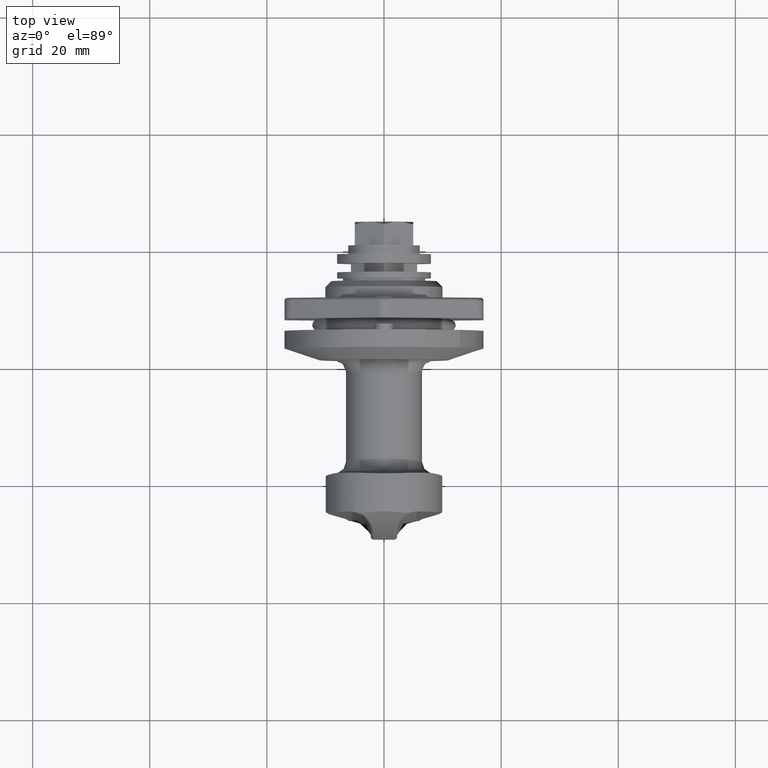
[diagram: clean part render]
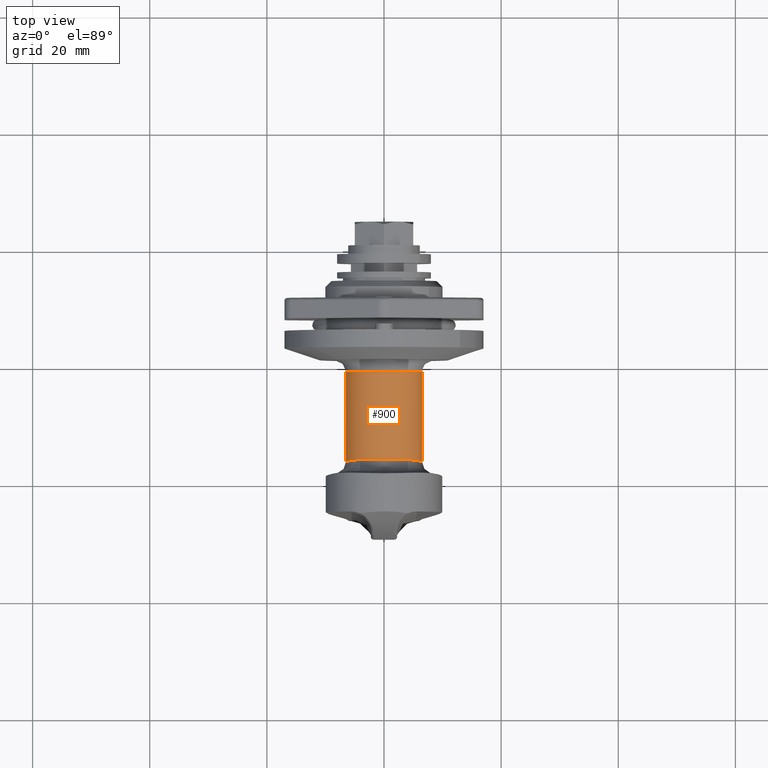
[diagram: same view with one face highlighted and labeled with its STEP entity id]
A machine part, top view. The second image highlights one B-rep face of the part: STEP entity #900.
In plain terms, the highlighted face is a freeform B-spline surface patch.
Its self-contained STEP definition (entity closure, byte-faithful):
#677=CARTESIAN_POINT('',(-1.616274981056393,-4.840327707059196,-4.338343887738159));
#678=CARTESIAN_POINT('',(-1.616274981056393,-8.703586934423322,-0.028072235319236));
#679=CARTESIAN_POINT('',(-1.616274981056393,-4.868212185128506,4.307030313402298));
#680=CARTESIAN_POINT('',(-1.616274981056393,-0.561181871726208,9.175242498530803));
#681=CARTESIAN_POINT('',(-1.616274981056393,4.307030313402298,4.868212185128506));
#682=CARTESIAN_POINT('',(-1.616274981056393,9.175242498530803,0.561181871726208));
#683=CARTESIAN_POINT('',(-1.616274981056393,4.868212185128506,-4.307030313402298));
#684=CARTESIAN_POINT('',(-17.742318895690953,-4.840327707059196,-4.338343887738159));
#685=CARTESIAN_POINT('',(-17.742318895690946,-8.703586934423322,-0.028072235319236));
#686=CARTESIAN_POINT('',(-17.742318895690950,-4.868212185128506,4.307030313402298));
#687=CARTESIAN_POINT('',(-17.742318895690950,-0.561181871726208,9.175242498530803));
#688=CARTESIAN_POINT('',(-17.742318895690950,4.307030313402298,4.868212185128506));
#689=CARTESIAN_POINT('',(-17.742318895690950,9.175242498530803,0.561181871726208));
#690=CARTESIAN_POINT('',(-17.742318895690950,4.868212185128506,-4.307030313402298));
#698=(BOUNDED_SURFACE()B_SPLINE_SURFACE(2,1,((#677,#684),(#678,#685),(#679,#686),(#680,#687),(#681,#688),(#682,#689),(#683,#690)),.UNSPECIFIED.,.F.,.F.,.U.)B_SPLINE_SURFACE_WITH_KNOTS((3,2,2,3),(2,2),(0.0,9.907988411964428,20.677541033664902,31.447093655365361),(0.0,16.126043914634561),.UNSPECIFIED.)GEOMETRIC_REPRESENTATION_ITEM()RATIONAL_B_SPLINE_SURFACE(((0.956886118190660,0.956886118190660),(0.730538238691624,0.730538238691624),(1.0,1.0),(0.707106781186548,0.707106781186548),(1.0,1.0),(0.707106781186548,0.707106781186548),(1.0,1.0)))REPRESENTATION_ITEM('')SURFACE());
#699=CARTESIAN_POINT('',(-1.999999999760314,-4.840327776684969,-4.338343810051352));
#700=VERTEX_POINT('',#699);
#701=CARTESIAN_POINT('',(-1.999999999846031,-6.499486787324419,-0.081679259272418));
#702=VERTEX_POINT('',#701);
#703=CARTESIAN_POINT('',(-1.999999999760314,-4.840327776684969,-4.338343810051352));
#704=CARTESIAN_POINT('',(-1.999999999766972,-5.132482228402646,-4.012479068144118));
#705=CARTESIAN_POINT('',(-1.999999999779407,-5.578572088630138,-3.400160532394726));
#706=CARTESIAN_POINT('',(-1.999999999801515,-6.115209284840559,-2.305695101260805));
#707=CARTESIAN_POINT('',(-1.999999999823240,-6.422022340528731,-1.223555322920385));
#708=CARTESIAN_POINT('',(-1.999999999839246,-6.495217584714386,-0.422044723707858));
#709=CARTESIAN_POINT('',(-1.999999999846031,-6.499486787324419,-0.081679259272418));
#710=B_SPLINE_CURVE_WITH_KNOTS('',3,(#703,#704,#705,#706,#707,#708,#709),.UNSPECIFIED.,.F.,.U.,(4,1,1,1,4),(0.000000025730283,1.312960298647720,2.261225010924401,3.647109397288970,4.668298223012871),.UNSPECIFIED.);
#711=EDGE_CURVE('',#700,#702,#710,.T.);
#712=ORIENTED_EDGE('',*,*,#711,.T.);
#713=CARTESIAN_POINT('',(-2.0,0.0,6.500000000000000));
#714=VERTEX_POINT('',#713);
#715=CARTESIAN_POINT('',(-1.999999999846031,-6.499486787324419,-0.081679259272418));
#716=CARTESIAN_POINT('',(-1.999999999874165,-6.508689298409492,0.615174182227495));
#717=CARTESIAN_POINT('',(-1.999999999911518,-6.359638524340374,1.608495790666038));
#718=CARTESIAN_POINT('',(-1.999999999956605,-5.825431151419839,2.957249431970629));
#719=CARTESIAN_POINT('',(-1.999999999985292,-5.233561498160982,3.922064346430827));
#720=CARTESIAN_POINT('',(-2.000000000005784,-4.469960158154708,4.754871211182258));
#721=CARTESIAN_POINT('',(-2.000000000020372,-3.504650423652887,5.526420982039717));
#722=CARTESIAN_POINT('',(-2.000000000024423,-2.423734443426501,6.083979346118330));
#723=CARTESIAN_POINT('',(-2.000000000016751,-1.152446629896496,6.430135522730859));
#724=CARTESIAN_POINT('',(-2.000000000006819,-0.402026015480293,6.500044500931248));
#725=CARTESIAN_POINT('',(-2.0,0.0,6.500000000000000));
#726=B_SPLINE_CURVE_WITH_KNOTS('',3,(#715,#716,#717,#718,#719,#720,#721,#722,#723,#724,#725),.UNSPECIFIED.,.F.,.U.,(4,1,1,1,1,1,1,1,4),(0.000000118591649,2.090538353731860,2.975017048603450,4.341934387525281,5.467574386405851,6.352036381901879,8.040568141185878,9.085848398116941,10.291923147540560),.UNSPECIFIED.);
#727=EDGE_CURVE('',#702,#714,#726,.T.);
#728=ORIENTED_EDGE('',*,*,#727,.T.);
#729=CARTESIAN_POINT('',(-1.999999999846566,6.484176879960897,0.453266135267743));
#730=VERTEX_POINT('',#729);
#731=CARTESIAN_POINT('',(-2.0,0.0,6.500000000000000));
#732=CARTESIAN_POINT('',(-2.000000000000008,0.609819882735849,6.500262209155975));
#733=CARTESIAN_POINT('',(-1.999999999996892,1.473527438797466,6.377497811827604));
#734=CARTESIAN_POINT('',(-1.999999999986119,2.673239870180006,5.952997546068328));
#735=CARTESIAN_POINT('',(-1.999999999974793,3.505234280950881,5.506528870271798));
#736=CARTESIAN_POINT('',(-1.999999999957564,4.396505572483300,4.827821340840782));
#737=CARTESIAN_POINT('',(-1.999999999938231,5.114531432225818,4.065992329891944));
#738=CARTESIAN_POINT('',(-1.999999999913921,5.742822976860496,3.106757413481844));
#739=CARTESIAN_POINT('',(-1.999999999884283,6.257890519832114,1.940079302044706));
#740=CARTESIAN_POINT('',(-1.999999999860719,6.445374354464187,1.010900152196989));
#741=CARTESIAN_POINT('',(-1.999999999846566,6.484176879960897,0.453266135267743));
#742=B_SPLINE_CURVE_WITH_KNOTS('',3,(#731,#732,#733,#734,#735,#736,#737,#738,#739,#740,#741),.UNSPECIFIED.,.F.,.U.,(4,1,1,1,1,1,1,1,4),(0.000000099334555,1.829356158111457,2.591598634307149,3.811198624384895,4.649638923553277,5.945401887005637,6.936328949858787,8.079697559701675,9.756597730657925),.UNSPECIFIED.);
#743=EDGE_CURVE('',#714,#730,#742,.T.);
#744=ORIENTED_EDGE('',*,*,#743,.T.);
#745=CARTESIAN_POINT('',(-1.999999999997245,4.868212128827642,-4.307030377038849));
#746=VERTEX_POINT('',#745);
#747=CARTESIAN_POINT('',(-1.999999999846566,6.484176879960897,0.453266135267743));
#748=CARTESIAN_POINT('',(-1.999999999873341,6.533324518282768,-0.244045501946018));
#749=CARTESIAN_POINT('',(-1.999999999913033,6.430601271488023,-1.355839440578255));
#750=CARTESIAN_POINT('',(-1.999999999963960,5.844709395859695,-2.981551758815127));
#751=CARTESIAN_POINT('',(-1.999999999986737,5.278134467335256,-3.844074699284245));
#752=CARTESIAN_POINT('',(-1.999999999997245,4.868212128827642,-4.307030377038849));
#753=B_SPLINE_CURVE_WITH_KNOTS('',3,(#747,#748,#749,#750,#751,#752),.UNSPECIFIED.,.F.,.U.,(4,1,1,4),(0.000000032291280,2.096950910571141,3.306699132120749,5.161693144124437),.UNSPECIFIED.);
#754=EDGE_CURVE('',#730,#746,#753,.T.);
#755=ORIENTED_EDGE('',*,*,#754,.T.);
#756=CARTESIAN_POINT('',(-16.745108011010782,4.868212794965355,-4.307029909092768));
#757=VERTEX_POINT('',#756);
#758=CARTESIAN_POINT('',(-1.999999999997245,4.868212128827642,-4.307030377038849));
#759=CARTESIAN_POINT('',(-16.745108011010782,4.868212794965355,-4.307029909092768));
#760=QUASI_UNIFORM_CURVE('',1,(#758,#759),.UNSPECIFIED.,.F.,.U.);
#761=EDGE_CURVE('',#746,#757,#760,.T.);
#762=ORIENTED_EDGE('',*,*,#761,.T.);
#763=CARTESIAN_POINT('',(-17.089451479205319,4.966690741801791,4.193203530186628));
#764=VERTEX_POINT('',#763);
#765=CARTESIAN_POINT('',(-16.745108011010782,4.868212794965355,-4.307029909092768));
#766=CARTESIAN_POINT('',(-16.760146975146441,4.912721323046647,-4.256722688774437));
#767=CARTESIAN_POINT('',(-16.775069741260321,4.956372991235724,-4.205811917763699));
#768=CARTESIAN_POINT('',(-16.836074583512200,5.132996113479599,-3.993268197043530));
#769=CARTESIAN_POINT('',(-16.925819144225500,5.384138941410993,-3.659478233808315));
#770=CARTESIAN_POINT('',(-17.007583504243549,5.602814273269819,-3.301953559231537));
#771=CARTESIAN_POINT('',(-17.064970944740889,5.754418798675292,-3.024528725522023));
#772=CARTESIAN_POINT('',(-17.083444352198370,5.802882280876467,-2.930504019016428));
#773=CARTESIAN_POINT('',(-17.118924944890029,5.895572961265914,-2.739254752110254));
#774=CARTESIAN_POINT('',(-17.135950331240409,5.939847086035793,-2.641882001875759));
#775=CARTESIAN_POINT('',(-17.216159944102721,6.148039080253744,-2.152374868082986));
#776=CARTESIAN_POINT('',(-17.265249421914561,6.274883833229368,-1.748393737895463));
#777=CARTESIAN_POINT('',(-17.314588984386720,6.405665877949554,-1.123705889023658));
#778=CARTESIAN_POINT('',(-17.327013485317519,6.439273596092548,-0.912340432406899));
#779=CARTESIAN_POINT('',(-17.339685164731769,6.474030910698841,-0.590411366224976));
#780=CARTESIAN_POINT('',(-17.342891343934411,6.482931379483570,-0.482841442251167));
#781=CARTESIAN_POINT('',(-17.347363135047122,6.495339564283360,-0.268514078205161));
#782=CARTESIAN_POINT('',(-17.348637240186619,6.498870411454620,-0.161548704152181));
#783=CARTESIAN_POINT('',(-17.350592581797599,6.503369676270093,0.372307817036377));
#784=CARTESIAN_POINT('',(-17.337972405548779,6.465259005213928,0.796313156980576));
#785=CARTESIAN_POINT('',(-17.311030458722460,6.364932727134326,1.322546609729168));
#786=CARTESIAN_POINT('',(-17.305085530689119,6.342199675581371,1.427640479399999));
#787=CARTESIAN_POINT('',(-17.292275169052139,6.291337961074420,1.637290868222588));
#788=CARTESIAN_POINT('',(-17.285461813829251,6.263413219207918,1.741015527538225));
#789=CARTESIAN_POINT('',(-17.264123072853451,6.172319706136507,2.048982984667859));
#790=CARTESIAN_POINT('',(-17.248706499276931,6.101850295091338,2.250027838039126));
#791=CARTESIAN_POINT('',(-17.217043265963589,5.941814197536144,2.643869785040864));
#792=CARTESIAN_POINT('',(-17.200796292657611,5.852246667969289,2.836666492887367));
#793=CARTESIAN_POINT('',(-17.176788961756358,5.703415351942111,3.119685616185999));
#794=CARTESIAN_POINT('',(-17.168845224268441,5.651387065346516,3.212993925876574));
#795=CARTESIAN_POINT('',(-17.153217762015981,5.542412703903635,3.397523739989128));
#796=CARTESIAN_POINT('',(-17.145516090590071,5.485321226117261,3.488962332462602));
#797=CARTESIAN_POINT('',(-17.120189401367281,5.284245055879845,3.793827682306200));
#798=CARTESIAN_POINT('',(-17.103868353588521,5.131053696728372,3.998559132130131));
#799=CARTESIAN_POINT('',(-17.089451479205319,4.966690741801791,4.193203530186628));
#800=B_SPLINE_CURVE_WITH_KNOTS('',3,(#765,#766,#767,#768,#769,#770,#771,#772,#773,#774,#775,#776,#777,#778,#779,#780,#781,#782,#783,#784,#785,#786,#787,#788,#789,#790,#791,#792,#793,#794,#795,#796,#797,#798,#799),.UNSPECIFIED.,.F.,.U.,(4,2,1,2,2,2,2,2,2,2,2,2,2,2,2,2,2,4),(0.635626779685039,0.640625000000006,0.656250000000006,0.671875000000006,0.679687500000005,0.687500000000005,0.718750000000005,0.734375000000005,0.742187500000004,0.750000000000004,0.781250000000004,0.789062500000004,0.796875000000004,0.812500000000003,0.828125000000003,0.835937500000003,0.843750000000003,0.862448521083060),.UNSPECIFIED.);
#801=EDGE_CURVE('',#757,#764,#800,.T.);
#802=ORIENTED_EDGE('',*,*,#801,.T.);
#803=CARTESIAN_POINT('',(-17.017692635019849,2.046432E-015,6.499999999999999));
#804=VERTEX_POINT('',#803);
#805=CARTESIAN_POINT('',(-17.089451479205319,4.966690741801791,4.193203530186628));
#806=CARTESIAN_POINT('',(-17.079774044619128,4.856361207831755,4.323859542849835));
#807=CARTESIAN_POINT('',(-17.070954599181810,4.740997937177676,4.449970496459375));
#808=CARTESIAN_POINT('',(-17.053327944028279,4.470856683289896,4.723010696299537));
#809=CARTESIAN_POINT('',(-17.045010521616071,4.313288759372023,4.867421831237700));
#810=CARTESIAN_POINT('',(-17.034703408928031,4.064959074122475,5.073232314967357));
#811=CARTESIAN_POINT('',(-17.031620480778820,3.979937357808740,5.140205993750223));
#812=CARTESIAN_POINT('',(-17.026194929837970,3.807458682649228,5.269238683732318));
#813=CARTESIAN_POINT('',(-17.023846652203449,3.719936008438293,5.331374307736472));
#814=CARTESIAN_POINT('',(-17.013743398314180,3.276024174381242,5.630365054851823));
#815=CARTESIAN_POINT('',(-17.010937276423650,2.900919842240055,5.832494128202526));
#816=CARTESIAN_POINT('',(-17.010575765434851,2.407104093497464,6.038817506189939));
#817=CARTESIAN_POINT('',(-17.010659181711169,2.307082912233396,6.077744288415102));
#818=CARTESIAN_POINT('',(-17.011048361090051,2.104478841141485,6.150835305300338));
#819=CARTESIAN_POINT('',(-17.011354957552872,2.001739063311171,6.185032746733297));
#820=CARTESIAN_POINT('',(-17.012463435978699,1.692970958141940,6.279345618286392));
#821=CARTESIAN_POINT('',(-17.013448035679030,1.485388511408870,6.331601622046325));
#822=CARTESIAN_POINT('',(-17.015294116947750,1.066834302172336,6.415404968327459));
#823=CARTESIAN_POINT('',(-17.016154837710509,0.855862359639294,6.446951225382061));
#824=CARTESIAN_POINT('',(-17.017354653904949,0.430513620781043,6.489247797122733));
#825=CARTESIAN_POINT('',(-17.017692669604870,0.216194854969448,6.500000047493623));
#826=CARTESIAN_POINT('',(-17.017692635019849,2.046432E-015,6.499999999999999));
#827=B_SPLINE_CURVE_WITH_KNOTS('',3,(#805,#806,#807,#808,#809,#810,#811,#812,#813,#814,#815,#816,#817,#818,#819,#820,#821,#822,#823,#824,#825,#826),.UNSPECIFIED.,.F.,.U.,(4,2,2,2,2,2,2,2,2,2,4),(0.862448521083060,0.875000000000003,0.890625000000002,0.898437500000002,0.906250000000002,0.937500000000001,0.945312500000001,0.953125000000001,0.968750000000001,0.984375000000000,1.0),.UNSPECIFIED.);
#828=EDGE_CURVE('',#764,#804,#827,.T.);
#829=ORIENTED_EDGE('',*,*,#828,.T.);
#830=CARTESIAN_POINT('',(-17.017676084452329,-0.084069619362278,6.499455904742248));
#831=VERTEX_POINT('',#830);
#832=CARTESIAN_POINT('',(-17.017692635019849,2.046432E-015,6.499999999999999));
#833=CARTESIAN_POINT('',(-17.017676084452329,-0.084069619362278,6.499455904742248));
#834=QUASI_UNIFORM_CURVE('',1,(#832,#833),.UNSPECIFIED.,.F.,.U.);
#835=EDGE_CURVE('',#804,#831,#834,.T.);
#836=ORIENTED_EDGE('',*,*,#835,.T.);
#837=CARTESIAN_POINT('',(-16.735695205309881,-4.840356551037723,-4.338355992722248));
#838=VERTEX_POINT('',#837);
#839=CARTESIAN_POINT('',(-17.017676084452329,-0.084069619362278,6.499455904742248));
#840=CARTESIAN_POINT('',(-17.017644478210428,-0.164069808749514,6.498419770436602));
#841=CARTESIAN_POINT('',(-17.017568298267339,-0.243939889022084,6.495909030610383));
#842=CARTESIAN_POINT('',(-17.017289659161221,-0.430824324535003,6.486597663441818));
#843=CARTESIAN_POINT('',(-17.017052419331200,-0.537702842694432,6.478604284200769));
#844=CARTESIAN_POINT('',(-17.016150736526999,-0.856906558723328,6.446817232758447));
#845=CARTESIAN_POINT('',(-17.015289433399271,-1.067803313452798,6.415235287657113));
#846=CARTESIAN_POINT('',(-17.013445174992100,-1.485823480351660,6.331491116543876));
#847=CARTESIAN_POINT('',(-17.012463111477771,-1.692946987389956,6.279329392435887));
#848=CARTESIAN_POINT('',(-17.011357086617060,-2.000748074825864,6.185348130635832));
#849=CARTESIAN_POINT('',(-17.011051151048601,-2.102866876003158,6.151393180931744));
#850=CARTESIAN_POINT('',(-17.010658727555459,-2.306121190942281,6.078115922547192));
#851=CARTESIAN_POINT('',(-17.010574135418299,-2.406632382413404,6.039012062706448));
#852=CARTESIAN_POINT('',(-17.010935524391190,-2.901984773099624,5.832062515659598));
#853=CARTESIAN_POINT('',(-17.013762834304789,-3.277218146806697,5.629611406497128));
#854=CARTESIAN_POINT('',(-17.023853721579449,-3.720293983591272,5.331120410519405));
#855=CARTESIAN_POINT('',(-17.026197180106148,-3.807599086639906,5.269130129994808));
#856=CARTESIAN_POINT('',(-17.031605227379892,-3.979549985924272,5.140498332964774));
#857=CARTESIAN_POINT('',(-17.034675970981880,-4.064339518216431,5.073736949237774));
#858=CARTESIAN_POINT('',(-17.045021328918189,-4.313668997404546,4.867121330095206));
#859=CARTESIAN_POINT('',(-17.053366943831570,-4.471628133369319,4.722292298189856));
#860=CARTESIAN_POINT('',(-17.082751765389091,-4.921593536676525,4.267306198511628));
#861=CARTESIAN_POINT('',(-17.108303339066850,-5.189910971410593,3.936856077615150));
#862=CARTESIAN_POINT('',(-17.145490855177229,-5.485146294587487,3.489217594500944));
#863=CARTESIAN_POINT('',(-17.153199428584120,-5.542312949774074,3.397690775883206));
#864=CARTESIAN_POINT('',(-17.168888090963939,-5.651704924507889,3.212438307731086));
#865=CARTESIAN_POINT('',(-17.176859072564099,-5.703892988254684,3.118811165982486));
#866=CARTESIAN_POINT('',(-17.200935166661910,-5.853083152923412,2.834970713654455));
#867=CARTESIAN_POINT('',(-17.233485163300379,-6.032375970987659,2.448641849743772));
#868=CARTESIAN_POINT('',(-17.264291172503359,-6.173080884543125,2.046629077655755));
#869=CARTESIAN_POINT('',(-17.285586212637220,-6.263941108064482,1.739069520556756));
#870=CARTESIAN_POINT('',(-17.292381255544651,-6.291778454434478,1.635539331664756));
#871=CARTESIAN_POINT('',(-17.305150883332789,-6.342462041032987,1.426404658732300));
#872=CARTESIAN_POINT('',(-17.311126083083380,-6.365306708587922,1.320715599437641));
#873=CARTESIAN_POINT('',(-17.338108651842688,-6.465743979097070,0.792928774745615));
#874=CARTESIAN_POINT('',(-17.350663746682621,-6.503597594154842,0.368215312639010));
#875=CARTESIAN_POINT('',(-17.348175622825309,-6.497776737110585,-0.272625978674490));
#876=CARTESIAN_POINT('',(-17.343803219550640,-6.485325201707086,-0.486889730755944));
#877=CARTESIAN_POINT('',(-17.326782188374501,-6.438648603089693,-0.916671547916067));
#878=CARTESIAN_POINT('',(-17.314289105206718,-6.404865824741344,-1.128137368404327));
#879=CARTESIAN_POINT('',(-17.264781141466681,-6.273663631624360,-1.752674213545512));
#880=CARTESIAN_POINT('',(-17.215631210100760,-6.146675381096519,-2.155954576708332));
#881=CARTESIAN_POINT('',(-17.135577709412189,-5.938881662658798,-2.643977040820271));
#882=CARTESIAN_POINT('',(-17.118632303803452,-5.894814454754333,-2.740838652583434));
#883=CARTESIAN_POINT('',(-17.083020156076891,-5.801774704125157,-2.932650005090647));
#884=CARTESIAN_POINT('',(-17.064489856778341,-5.753157562308847,-3.026876320812960));
#885=CARTESIAN_POINT('',(-17.006967757499631,-5.601178832479212,-3.304695706880970));
#886=CARTESIAN_POINT('',(-16.966044420287819,-5.491707436629793,-3.483441609904708));
#887=CARTESIAN_POINT('',(-16.863820143889431,-5.211619377775384,-3.895163262804341));
#888=CARTESIAN_POINT('',(-16.800720542296091,-5.033796266044777,-4.122607289236575));
#889=CARTESIAN_POINT('',(-16.735695205309881,-4.840356551037723,-4.338355992722248));
#890=B_SPLINE_CURVE_WITH_KNOTS('',3,(#839,#840,#841,#842,#843,#844,#845,#846,#847,#848,#849,#850,#851,#852,#853,#854,#855,#856,#857,#858,#859,#860,#861,#862,#863,#864,#865,#866,#867,#868,#869,#870,#871,#872,#873,#874,#875,#876,#877,#878,#879,#880,#881,#882,#883,#884,#885,#886,#887,#888,#889),.UNSPECIFIED.,.F.,.U.,(4,2,2,2,2,2,2,2,2,2,2,2,2,2,1,2,2,2,2,2,2,2,2,2,2,4),(0.002026014804634,0.007812500000000,0.015625000000000,0.031250000000000,0.046875000000000,0.054687500000000,0.062500000000000,0.093750000000001,0.101562500000001,0.109375000000001,0.125000000000001,0.156250000000001,0.164062500000002,0.171875000000002,0.187500000000002,0.203125000000002,0.210937500000002,0.218750000000002,0.250000000000003,0.265625000000003,0.281250000000003,0.312500000000003,0.320312500000003,0.328125000000003,0.343750000000004,0.365398485530947),.UNSPECIFIED.);
#891=EDGE_CURVE('',#831,#838,#890,.T.);
#892=ORIENTED_EDGE('',*,*,#891,.T.);
#893=CARTESIAN_POINT('',(-1.999999999760314,-4.840327776684969,-4.338343810051352));
#894=CARTESIAN_POINT('',(-16.735695205309881,-4.840356551037723,-4.338355992722248));
#895=QUASI_UNIFORM_CURVE('',1,(#893,#894),.UNSPECIFIED.,.F.,.U.);
#896=EDGE_CURVE('',#700,#838,#895,.T.);
#897=ORIENTED_EDGE('',*,*,#896,.F.);
#898=EDGE_LOOP('',(#712,#728,#744,#755,#762,#802,#829,#836,#892,#897));
#899=FACE_OUTER_BOUND('',#898,.T.);
#900=ADVANCED_FACE('',(#899),#698,.T.);